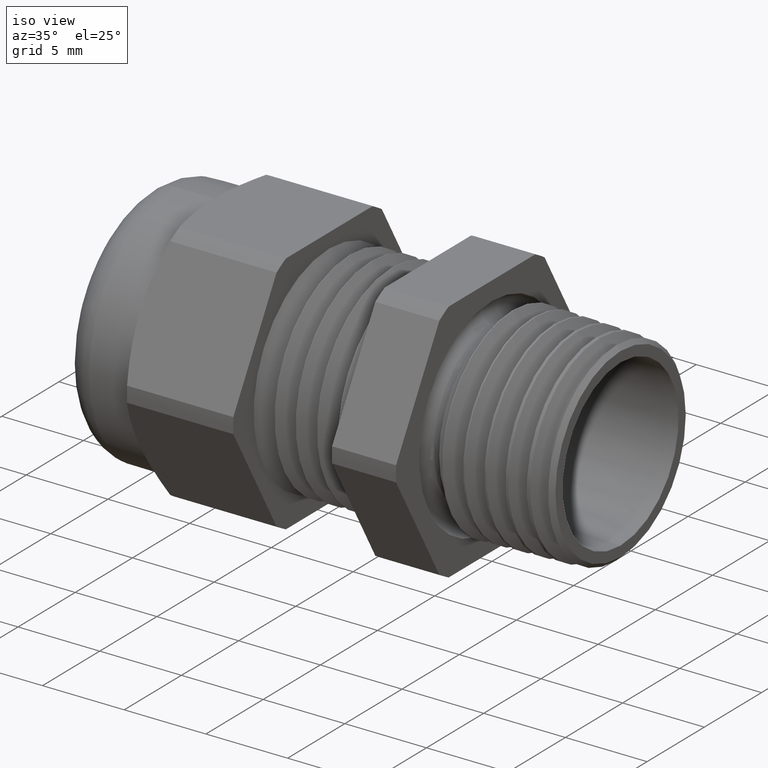
[diagram: clean part render]
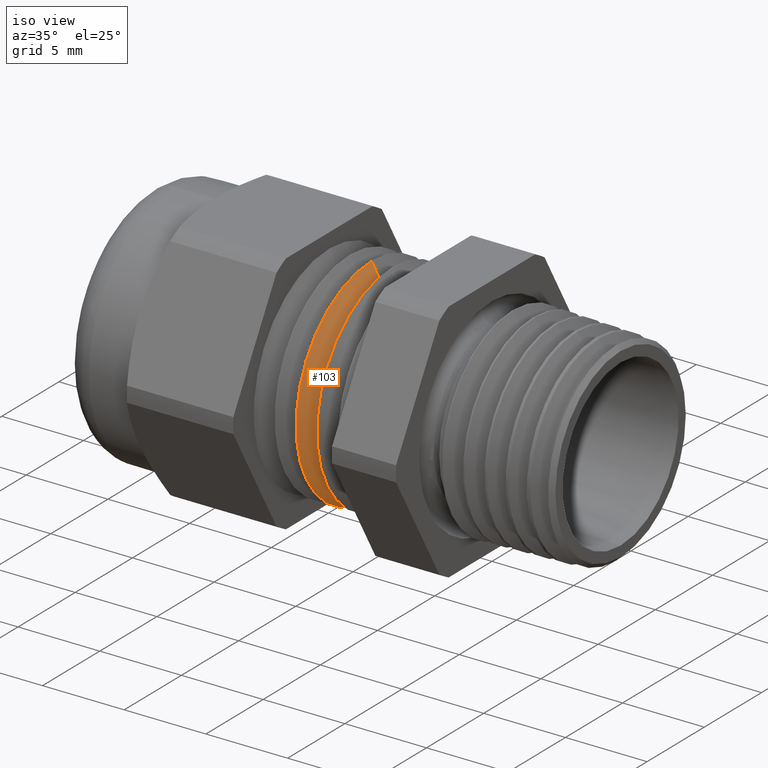
[diagram: same view with one face highlighted and labeled with its STEP entity id]
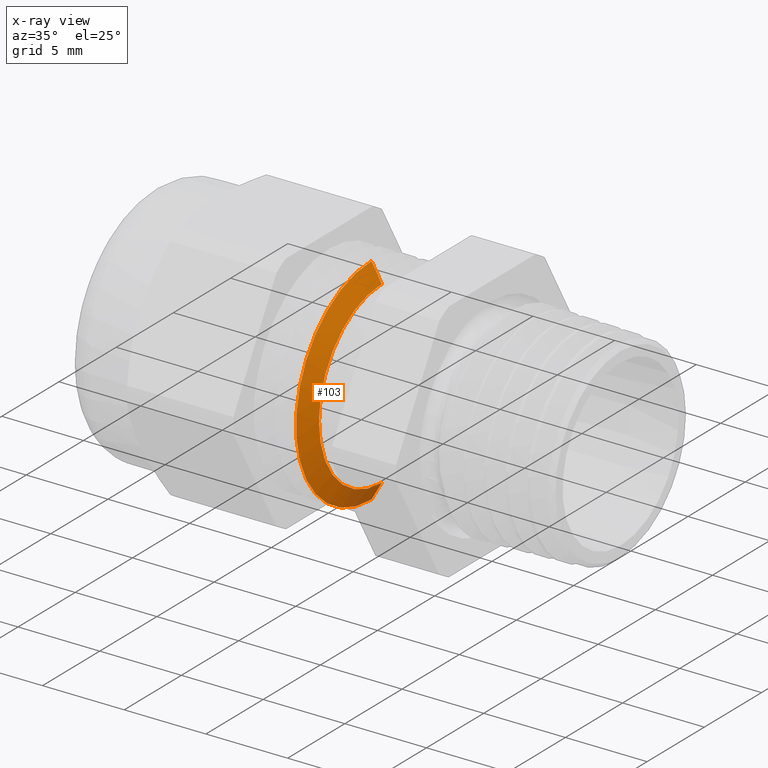
[diagram: x-ray of the same camera — body ghosted, the highlighted face saturated]
A machine part, iso view. The second image highlights one B-rep face of the part: STEP entity #103.
The next image is the same camera in x-ray: the body ghosted, the highlighted face saturated — about 7% of this face is hidden behind the body in this view.
In plain terms, the highlighted conical surface has half-angle 60 deg.
Its self-contained STEP definition (entity closure, byte-faithful):
#86 = ORIENTED_EDGE ( 'NONE', *, *, #1214, .T. ) ;
#89 = EDGE_CURVE ( 'NONE', #405, #410, #749, .T. ) ;
#92 = ORIENTED_EDGE ( 'NONE', *, *, #392, .T. ) ;
#94 = EDGE_LOOP ( 'NONE', ( #95, #98, #92, #86 ) ) ;
#95 = ORIENTED_EDGE ( 'NONE', *, *, #403, .F. ) ;
#98 = ORIENTED_EDGE ( 'NONE', *, *, #89, .F. ) ;
#103 = ADVANCED_FACE ( 'NONE', ( #737 ), #732, .T. ) ;
#391 = VERTEX_POINT ( 'NONE', #1858 ) ;
#392 = EDGE_CURVE ( 'NONE', #405, #391, #1857, .T. ) ;
#403 = EDGE_CURVE ( 'NONE', #410, #404, #1899, .T. ) ;
#404 = VERTEX_POINT ( 'NONE', #1895 ) ;
#405 = VERTEX_POINT ( 'NONE', #1894 ) ;
#410 = VERTEX_POINT ( 'NONE', #1933 ) ;
#727 = DIRECTION ( 'NONE',  ( 0.0000000000000000000, 0.0000000000000000000, 1.000000000000000000 ) ) ;
#728 = DIRECTION ( 'NONE',  ( -1.000000000000000000, 0.0000000000000000000, 0.0000000000000000000 ) ) ;
#729 = CARTESIAN_POINT ( 'NONE',  ( -0.2900833333333335300, 0.0000000000000000000, 0.0000000000000000000 ) ) ;
#730 = AXIS2_PLACEMENT_3D ( 'NONE', #729, #728, #727 ) ;
#732 = CONICAL_SURFACE ( 'NONE', #730, 0.2596999999999999900, 1.047197551196607600 ) ;
#737 = FACE_OUTER_BOUND ( 'NONE', #94, .T. ) ;
#745 = DIRECTION ( 'NONE',  ( 0.0000000000000000000, 0.0000000000000000000, -1.000000000000000000 ) ) ;
#746 = DIRECTION ( 'NONE',  ( 1.000000000000000000, 0.0000000000000000000, 0.0000000000000000000 ) ) ;
#747 = CARTESIAN_POINT ( 'NONE',  ( -0.2650833449895867400, 0.0000000000000000000, 0.0000000000000000000 ) ) ;
#748 = AXIS2_PLACEMENT_3D ( 'NONE', #747, #746, #745 ) ;
#749 = CIRCLE ( 'NONE', #748, 0.2163987499999998900 ) ;
#1214 = EDGE_CURVE ( 'NONE', #391, #404, #3012, .T. ) ;
#1854 = DIRECTION ( 'NONE',  ( -0.4999999999999913400, 0.0000000000000000000, 0.8660254037844434800 ) ) ;
#1855 = VECTOR ( 'NONE', #1854, 39.37007874015748900 ) ;
#1856 = CARTESIAN_POINT ( 'NONE',  ( -0.2900833333333335300, 0.0000000000000000000, 0.2596999999999999900 ) ) ;
#1857 = LINE ( 'NONE', #1856, #1855 ) ;
#1858 = CARTESIAN_POINT ( 'NONE',  ( -0.2900833333333335300, 0.0000000000000000000, 0.2596999999999999900 ) ) ;
#1894 = CARTESIAN_POINT ( 'NONE',  ( -0.2650833449895867400, 2.915264051327778600E-017, 0.2163987499999998900 ) ) ;
#1895 = CARTESIAN_POINT ( 'NONE',  ( -0.2900833333333335300, 3.180407737385675900E-017, -0.2596999999999999900 ) ) ;
#1896 = DIRECTION ( 'NONE',  ( -0.4999999999999913400, 1.060575238724912700E-016, -0.8660254037844434800 ) ) ;
#1897 = VECTOR ( 'NONE', #1896, 39.37007874015748900 ) ;
#1898 = CARTESIAN_POINT ( 'NONE',  ( -0.2900833333333335300, 3.180407737385675900E-017, -0.2596999999999999900 ) ) ;
#1899 = LINE ( 'NONE', #1898, #1897 ) ;
#1933 = CARTESIAN_POINT ( 'NONE',  ( -0.2650833449895867400, 0.0000000000000000000, -0.2163987499999998900 ) ) ;
#3008 = DIRECTION ( 'NONE',  ( 0.0000000000000000000, 0.0000000000000000000, -1.000000000000000000 ) ) ;
#3009 = DIRECTION ( 'NONE',  ( 1.000000000000000000, 0.0000000000000000000, 0.0000000000000000000 ) ) ;
#3010 = CARTESIAN_POINT ( 'NONE',  ( -0.2900833333333335300, 0.0000000000000000000, 0.0000000000000000000 ) ) ;
#3011 = AXIS2_PLACEMENT_3D ( 'NONE', #3010, #3009, #3008 ) ;
#3012 = CIRCLE ( 'NONE', #3011, 0.2596999999999999900 ) ;